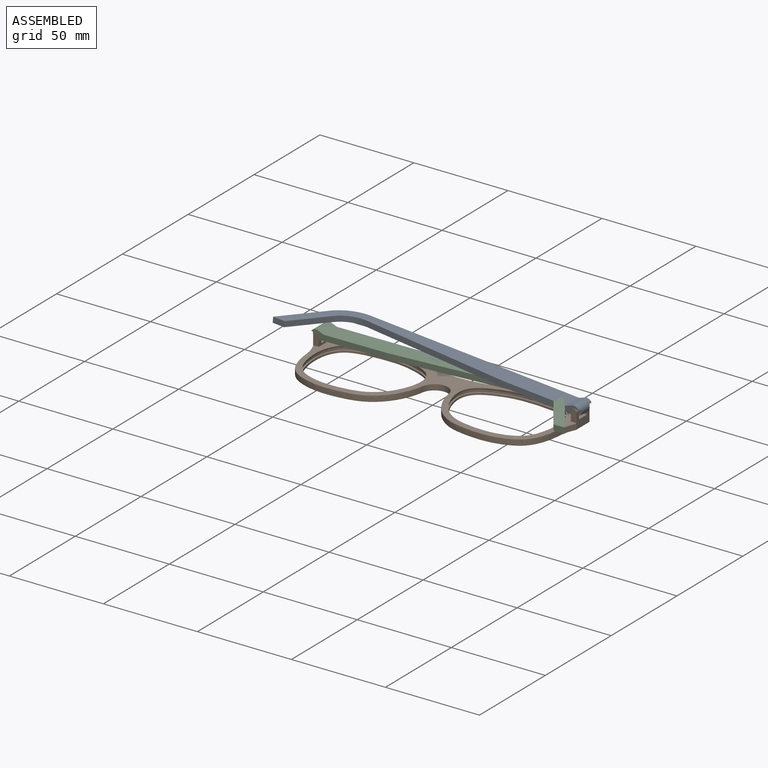
[diagram: assembled view]
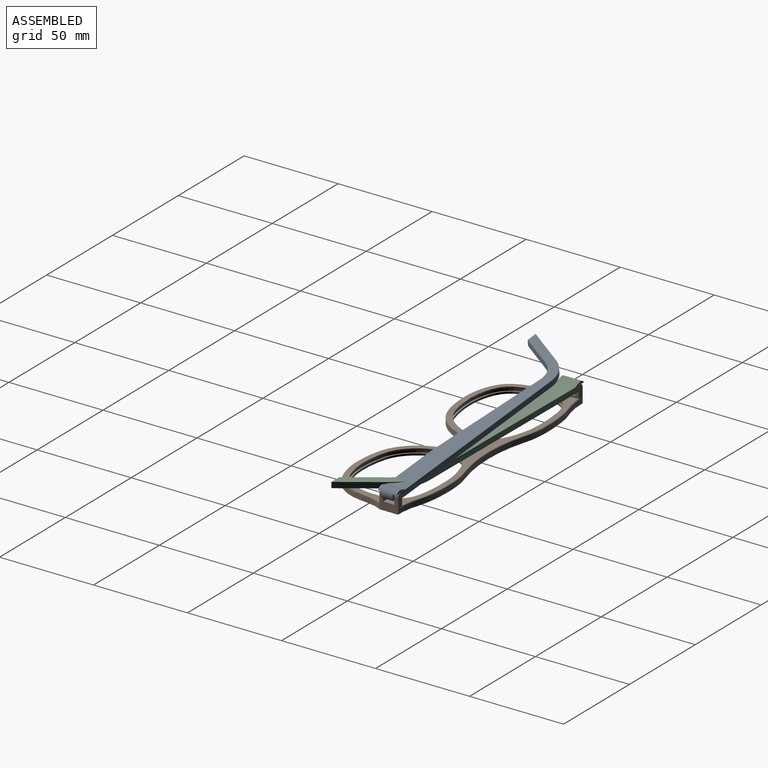
[diagram: assembled view, second angle]
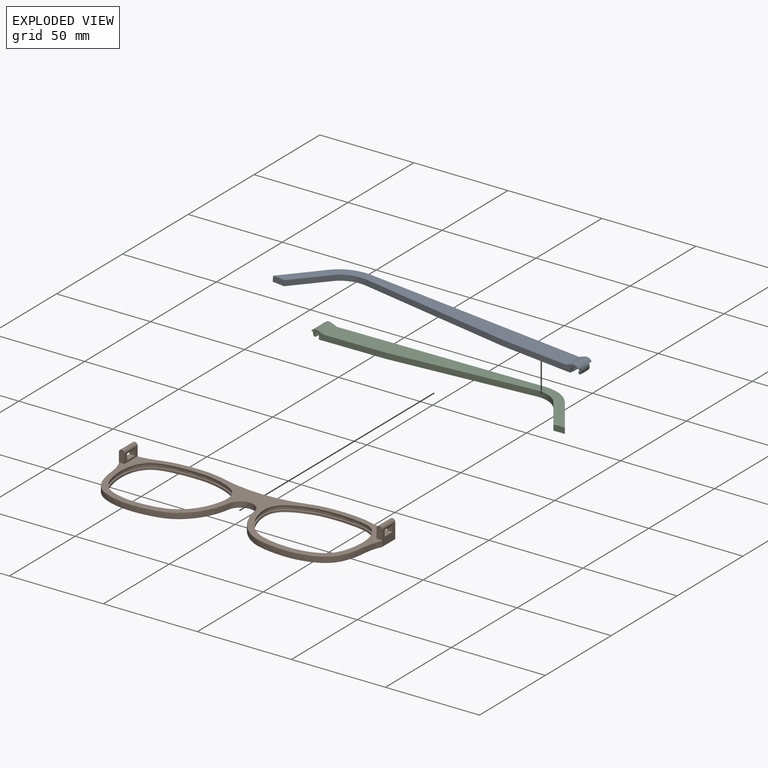
[diagram: exploded view]
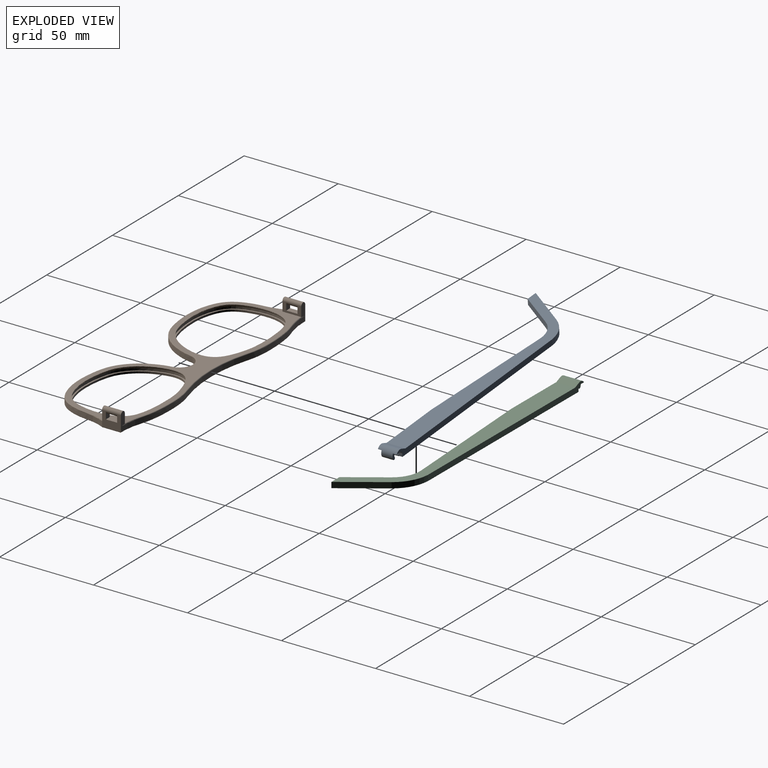
[diagram: exploded view, second angle]
ASSEMBLY  parts=3 mates=2
PART A: 26 faces, bbox 4.8x30x149.4 mm
  f0: plane 3.44x3mm, normal (0,-1,0), area 5mm2, adj f2,f3,f18,f25
  f1: plane 1.74x1.3mm, normal (0,1,0), area 0.5mm2, adj f2,f15,f17,f21
  f2: cylinder r=1.6mm len=10mm, axis (0,1,0), area 50.5mm2, adj f0,f1,f4,f5,f6,f7,f8,f17
  f3: cylinder r=3mm len=10mm, axis (0,1,0), area 61.6mm2, adj f0,f5,f6,f8,f18,f19,f20,f25
  f4: plane 1.74x1.3mm, normal (0,-1,0), area 0.5mm2, adj f2,f7,f15,f21
  f5: plane 3.44x3mm, normal (0,1,0), area 5mm2, adj f2,f3,f20,f25
  f6: plane 118.4x4.5mm, normal (0,1,0), area 349.2mm2, adj f2,f3,f14,f15,f16,f17,f19,f20
  f7: plane 2x1.4mm, normal (0,0,-1), area 2.8mm2, adj f2,f4,f8,f15
  f8: plane 40.54x4.5mm, normal (0,-1,0), area 115.7mm2, adj f2,f3,f7,f9,f15,f16,f18,f19
  f9: plane 76.02x4.99mm, normal (0,-1,0.07), area 228.5mm2, adj f8,f10,f15,f16
  f10: cylinder r=15mm len=13.27mm, axis (1,0,0), area 46.1mm2, adj f9,f11,f15,f16
  f11: plane 18.62x13.04mm, normal (0,-0.57,-0.82), area 68.2mm2, adj f10,f12,f15,f16
  f12: plane 6.1x3mm, normal (0,-1,0), area 18.3mm2, adj f11,f13,f15,f16
  f13: plane 21.49x15.05mm, normal (0,0.57,0.82), area 78.7mm2, adj f12,f14,f15,f16
  f14: cylinder r=20mm len=15.53mm, axis (1,0,0), area 55mm2, adj f6,f13,f15,f16
  f15: plane 144.83x30mm, normal (-1,0,0), area 1140mm2, adj f1,f4,f6,f7,f8,f9,f10,f11
  f16: plane 142.27x30mm, normal (1,0,0), area 1120.3mm2, adj f6,f8,f9,f10,f11,f12,f13,f14
  f17: plane 2x1.4mm, normal (0,0,-1), area 2.8mm2, adj f1,f2,f6,f15
  f18: plane 2.54x2mm, normal (-1,0,0), area 5.1mm2, adj f0,f2,f3,f8
  f19: plane 10x3mm, normal (0.92,0,0.39), area 32.6mm2, adj f3,f6,f8,f16
  f20: plane 2.54x2mm, normal (-1,0,0), area 5.1mm2, adj f2,f3,f5,f6
  f21: cylinder r=0.7mm len=6mm, axis (0,1,0), area 13.2mm2, adj f1,f2,f4,f22,f23,f24
  f22: plane 0.02x0.01mm, normal (0,-1,0), area 0mm2, adj f15,f21,f24
  f23: plane 0.02x0.01mm, normal (0,1,0), area 0mm2, adj f15,f21,f24
  f24: cylinder r=3mm len=6mm, axis (0,1,0), area 0.1mm2, adj f15,f21,f22,f23
  f25: cylinder r=0.7mm len=6mm, axis (0,1,0), area 13.2mm2, adj f0,f2,f3,f5
PART B: 72 faces, bbox 140.1x47x10 mm
  f0: extruded ~54.45x40.52mm, area 155.6mm2, adj f11,f13
  f1: cylinder r=44.62mm len=13.92mm, axis (0,0,-1), area 36.8mm2, adj f2,f9,f40,f51
  f2: plane 10x8mm, normal (-1,0,0), area 56mm2, adj f1,f3,f15,f16,f17,f18,f19,f21
  f3: cylinder r=27.34mm len=9.69mm, axis (0,0,-1), area 26.2mm2, adj f2,f4,f55,f60
  f4: extruded ~60.45x25.64mm, area 224.9mm2, adj f3,f57,f63,f64
  f5: cylinder r=7mm len=13.84mm, axis (0,0,-1), area 51.7mm2, adj f62,f63,f67,f68
  f6: cylinder r=79.75mm len=45.1mm, axis (0,0,-1), area 118.9mm2, adj f7,f27,f43,f48
  f7: extruded ~13.45x2.6mm, area 35.5mm2, adj f6,f9,f42,f47
  f8: extruded ~54.45x40.52mm, area 31.1mm2, adj f10,f14
  f9: extruded ~20.09x2.6mm, area 52.7mm2, adj f1,f7,f41,f49
  f10: plane 139.11x46.06mm, normal (0,0,1), area 1207.5mm2, adj f8,f16,f20,f28,f34,f38,f40,f41
  f11: plane 139.2x46.06mm, normal (0,0,-1), area 1257.6mm2, adj f0,f22,f47,f48,f49,f50,f51,f52
  f12: extruded ~56.04x42.12mm, area 224.9mm2, adj f13,f14
  f13: plane 56.11x42.13mm, normal (0,0,1), area 126.4mm2, adj f0,f12
  f14: bspline ~56.11x42.14mm, area 197.4mm2, adj f8,f12
  f15: plane 6.91x3.01mm, normal (0,1,0), area 19.3mm2, adj f2,f20,f21,f40
  f16: plane 6.98x3.08mm, normal (0,-1,0), area 18.6mm2, adj f2,f10,f20,f21,f60
  f17: plane 4x3mm, normal (0,1,0), area 8.5mm2, adj f2,f18,f20,f21
  f18: plane 6x3mm, normal (0,0,1), area 18mm2, adj f2,f17,f19,f20
  f19: plane 4x3mm, normal (0,-1,0), area 8.5mm2, adj f2,f18,f20,f21
  f20: plane 10x5.14mm, normal (1,0,0), area 26mm2, adj f10,f15,f16,f17,f18,f19,f21,f40
  f21: cylinder r=1.5mm len=10mm, axis (0,1,0), area 75.4mm2, adj f2,f15,f16,f17,f19,f20
  f22: extruded ~54.45x40.52mm, area 155.6mm2, adj f11,f31
  f23: cylinder r=44.62mm len=13.92mm, axis (0,0,-1), area 36.8mm2, adj f24,f29,f46,f54
  f24: plane 10x8mm, normal (1,0,0), area 56mm2, adj f23,f25,f33,f34,f35,f36,f37,f39
  f25: cylinder r=27.34mm len=9.69mm, axis (0,0,-1), area 26.2mm2, adj f24,f26,f58,f71
  f26: extruded ~60.45x25.64mm, area 224.9mm2, adj f25,f61,f67,f70
  f27: extruded ~13.45x2.6mm, area 35.5mm2, adj f6,f29,f44,f50
  f28: extruded ~54.45x40.52mm, area 31.1mm2, adj f10,f32
  f29: extruded ~20.09x2.6mm, area 52.7mm2, adj f23,f27,f45,f52
  f30: extruded ~56.04x42.12mm, area 224.9mm2, adj f31,f32
  f31: plane 56.11x42.13mm, normal (0,0,1), area 126.4mm2, adj f22,f30
  f32: bspline ~56.11x42.14mm, area 197.5mm2, adj f28,f30
  f33: plane 6.91x3.01mm, normal (0,1,0), area 19.3mm2, adj f24,f38,f39,f46
  f34: plane 6.98x3.08mm, normal (0,-1,0), area 18.6mm2, adj f10,f24,f38,f39,f71
  f35: plane 4x3mm, normal (0,1,0), area 8.5mm2, adj f24,f36,f38,f39
  f36: plane 6x3mm, normal (0,0,1), area 18mm2, adj f24,f35,f37,f38
  f37: plane 4x3mm, normal (0,-1,0), area 8.5mm2, adj f24,f36,f38,f39
  f38: plane 10x5.14mm, normal (-1,0,0), area 26mm2, adj f10,f33,f34,f35,f36,f37,f39,f46
  f39: cylinder r=1.5mm len=10mm, axis (0,1,0), area 75.4mm2, adj f24,f33,f34,f35,f37,f38
  f40: torus R=45.02mm, axis (0,0,1), area 7.5mm2, adj f1,f10,f15,f20,f41
  f41: bspline ~27.15x3.72mm, area 12.7mm2, adj f9,f10,f40,f42
  f42: bspline ~18.51x3.15mm, area 8.5mm2, adj f7,f10,f41,f43
  f43: torus R=80.15mm, axis (0,0,1), area 28.8mm2, adj f6,f10,f42,f44
  f44: bspline ~18.51x3.15mm, area 8.5mm2, adj f10,f27,f43,f45
  f45: bspline ~27.15x3.72mm, area 12.7mm2, adj f10,f29,f44,f46
  f46: torus R=45.02mm, axis (0,0,1), area 7.5mm2, adj f10,f23,f33,f38,f45
  f47: bspline ~18.51x3.15mm, area 8.5mm2, adj f7,f11,f48,f49
  f48: torus R=80.15mm, axis (0,0,1), area 28.8mm2, adj f6,f11,f47,f50
  f49: bspline ~27.15x3.72mm, area 12.7mm2, adj f9,f11,f47,f51
  f50: bspline ~18.51x3.15mm, area 8.5mm2, adj f11,f27,f48,f52
  f51: torus R=45.02mm, axis (0,0,1), area 8.8mm2, adj f1,f11,f49,f53
  f52: bspline ~24.58x2.88mm, area 12.7mm2, adj f11,f29,f50,f54
  f53: cylinder r=0.4mm len=10mm, axis (0,-1,0), area 6.1mm2, adj f2,f11,f51,f55
  f54: torus R=45.02mm, axis (0,0,1), area 8.8mm2, adj f11,f23,f52,f56
  f55: torus R=27.74mm, axis (0,0,1), area 6.3mm2, adj f3,f11,f53,f57
  f56: cylinder r=0.4mm len=10mm, axis (0,-1,0), area 6.1mm2, adj f11,f24,f54,f58
  f57: bspline ~60.91x27.64mm, area 54.2mm2, adj f4,f11,f55,f59
  f58: torus R=27.74mm, axis (0,0,1), area 6.3mm2, adj f11,f25,f56,f61
  f59: torus R=0.8mm, axis (0,0,1), area 0mm2, adj f11,f57,f62,f63
  f60: torus R=27.74mm, axis (0,0,1), area 6.3mm2, adj f3,f10,f16,f64
  f61: bspline ~62.09x42.26mm, area 54.2mm2, adj f11,f26,f58,f65
  f62: torus R=7.4mm, axis (0,0,1), area 12.7mm2, adj f5,f11,f59,f65
  f63: cylinder r=0.4mm len=2.6mm, axis (0,0,-1), area 0mm2, adj f4,f5,f59,f66
  f64: bspline ~62.09x42.26mm, area 54.2mm2, adj f4,f10,f60,f66
  f65: torus R=0.8mm, axis (0,0,1), area 0mm2, adj f11,f61,f62,f67
  f66: torus R=0.8mm, axis (0,0,1), area 0mm2, adj f10,f63,f64,f68
  f67: cylinder r=0.4mm len=2.6mm, axis (0,0,-1), area 0mm2, adj f5,f26,f65,f69
  f68: torus R=7.4mm, axis (0,0,1), area 12.7mm2, adj f5,f10,f66,f69
  f69: torus R=0.8mm, axis (0,0,1), area 0mm2, adj f10,f67,f68,f70
  f70: bspline ~60.91x27.64mm, area 54.2mm2, adj f10,f26,f69,f71
  f71: torus R=27.74mm, axis (0,0,1), area 6.3mm2, adj f10,f25,f34,f70
PART C: 26 faces, bbox 4.8x30x149.4 mm
  f0: plane 3.44x3mm, normal (0,-1,0), area 5mm2, adj f2,f3,f18,f25
  f1: plane 1.74x1.3mm, normal (0,1,0), area 0.5mm2, adj f2,f15,f17,f21
  f2: cylinder r=1.6mm len=10mm, axis (0,1,0), area 50.5mm2, adj f0,f1,f4,f5,f6,f7,f8,f17
  f3: cylinder r=3mm len=10mm, axis (0,1,0), area 61.6mm2, adj f0,f5,f6,f8,f18,f19,f20,f25
  f4: plane 1.74x1.3mm, normal (0,-1,0), area 0.5mm2, adj f2,f7,f15,f21
  f5: plane 3.44x3mm, normal (0,1,0), area 5mm2, adj f2,f3,f20,f25
  f6: plane 118.4x4.5mm, normal (0,1,0), area 349.2mm2, adj f2,f3,f14,f15,f16,f17,f19,f20
  f7: plane 2x1.4mm, normal (0,0,-1), area 2.8mm2, adj f2,f4,f8,f15
  f8: plane 40.54x4.5mm, normal (0,-1,0), area 115.7mm2, adj f2,f3,f7,f9,f15,f16,f18,f19
  f9: plane 76.02x4.99mm, normal (0,-1,0.07), area 228.5mm2, adj f8,f10,f15,f16
  f10: cylinder r=15mm len=13.27mm, axis (-1,0,0), area 46.1mm2, adj f9,f11,f15,f16
  f11: plane 18.62x13.04mm, normal (0,-0.57,-0.82), area 68.2mm2, adj f10,f12,f15,f16
  f12: plane 6.1x3mm, normal (0,-1,0), area 18.3mm2, adj f11,f13,f15,f16
  f13: plane 21.49x15.05mm, normal (0,0.57,0.82), area 78.7mm2, adj f12,f14,f15,f16
  f14: cylinder r=20mm len=15.53mm, axis (-1,0,0), area 55mm2, adj f6,f13,f15,f16
  f15: plane 144.83x30mm, normal (1,0,0), area 1140mm2, adj f1,f4,f6,f7,f8,f9,f10,f11
  f16: plane 142.27x30mm, normal (-1,0,0), area 1120.3mm2, adj f6,f8,f9,f10,f11,f12,f13,f14
  f17: plane 2x1.4mm, normal (0,0,-1), area 2.8mm2, adj f1,f2,f6,f15
  f18: plane 2.54x2mm, normal (1,0,0), area 5.1mm2, adj f0,f2,f3,f8
  f19: plane 10x3mm, normal (-0.92,0,0.39), area 32.6mm2, adj f3,f6,f8,f16
  f20: plane 2.54x2mm, normal (1,0,0), area 5.1mm2, adj f2,f3,f5,f6
  f21: cylinder r=0.7mm len=6mm, axis (0,1,0), area 13.2mm2, adj f1,f2,f4,f22,f23,f24
  f22: plane 0.02x0.01mm, normal (0,-1,0), area 0mm2, adj f15,f21,f24
  f23: plane 0.02x0.01mm, normal (0,1,0), area 0mm2, adj f15,f21,f24
  f24: cylinder r=3mm len=6mm, axis (0,1,0), area 0.1mm2, adj f15,f21,f22,f23
  f25: cylinder r=0.7mm len=6mm, axis (0,1,0), area 13.2mm2, adj f0,f2,f3,f5
PLACE A rot(axis=(0,-1,0),84.9deg) t=(68.28,-0.61,-60.71)mm
PLACE B t=(-0.85,-0.61,1.42)mm fixed
PLACE C rot(axis=(0,1,0),89.6deg) t=(-75.56,-0.61,-60.43)mm
MATE revolute A.f3 <-> B.f39  axis (0,1,0) through (67.65,15.46,8.12)mm
MATE revolute C.f3 <-> B.f21  axis (0,1,0) through (-69.35,15.46,8.12)mm
